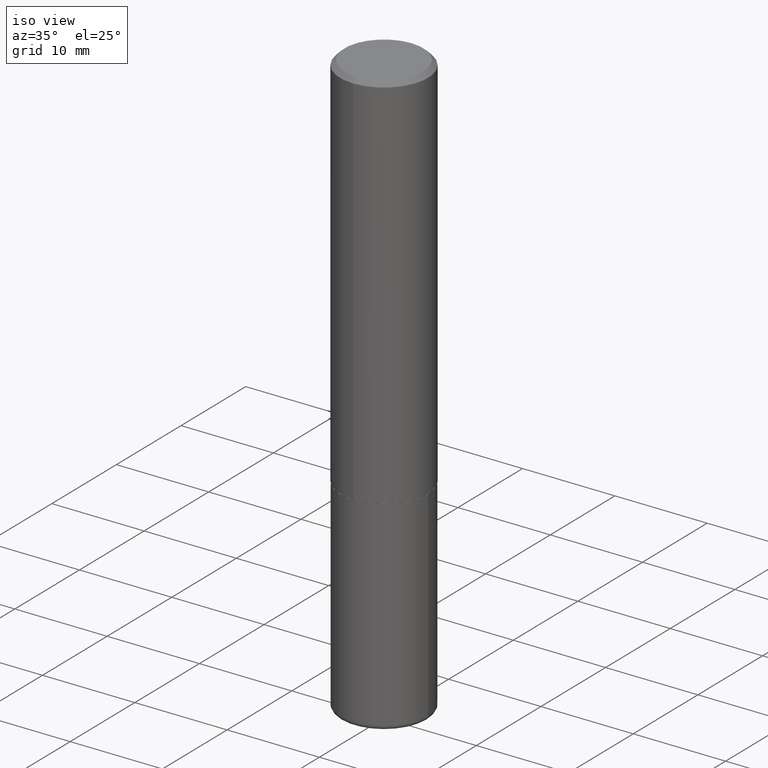
[diagram: clean part render]
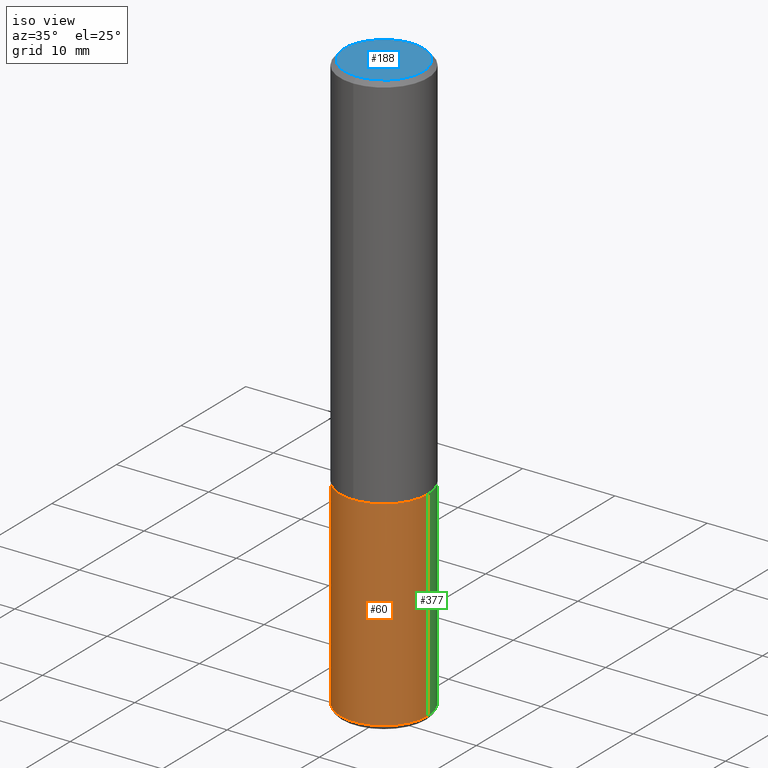
[diagram: same view with three faces highlighted in distinct colors, each labeled with its STEP entity id]
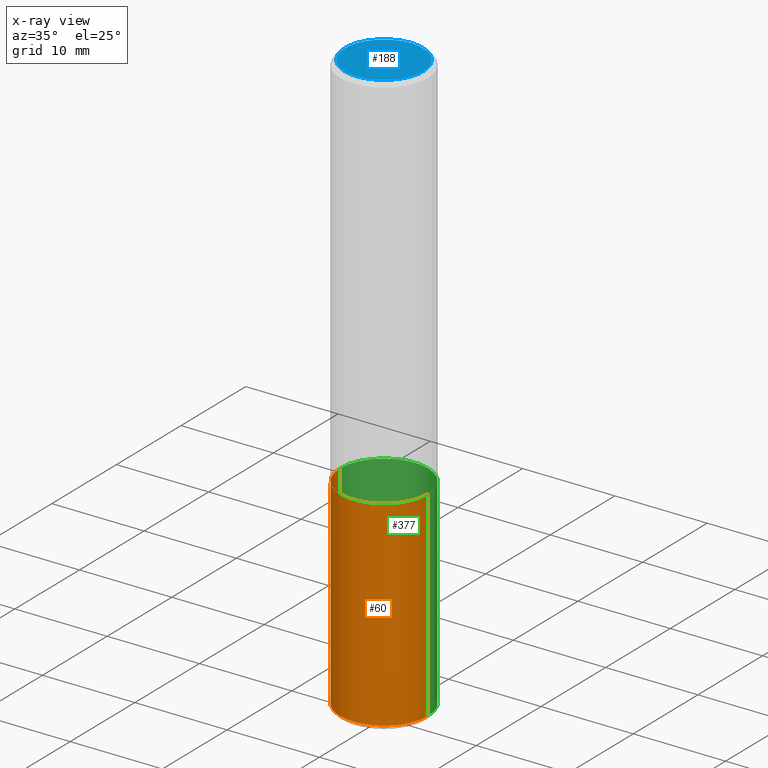
[diagram: x-ray of the same camera — body ghosted, the three highlighted faces saturated]
A machine part, iso view with three faces highlighted in distinct colors.
The next image is the same camera in x-ray (body ghosted, the three faces saturated) — at least one of them is partly hidden behind the body in this view.
Their STEP definitions:

[orange] entity #60 — the highlighted cylindrical surface (partial cylindrical patch) has radius 4.7625 mm, axis along (-0, 0, 1).
#1 = DIRECTION ( 'NONE',  ( 1.000000000000000000, -6.982962677686265922E-15, 4.876176775795935793E-29 ) ) ;
#7 = CARTESIAN_POINT ( 'NONE',  ( -0.1874999999999999722, -7.326606090780813796E-15, -2.480000000000000426 ) ) ;
#25 = VECTOR ( 'NONE', #71, 39.37007874015748143 ) ;
#26 = EDGE_CURVE ( 'NONE', #363, #231, #98, .T. ) ;
#28 = EDGE_LOOP ( 'NONE', ( #134, #382, #155, #284 ) ) ;
#37 = CARTESIAN_POINT ( 'NONE',  ( -0.1875000000000000278, 1.332267629550188046E-15, -9.223003294227947991E-30 ) ) ;
#39 = CARTESIAN_POINT ( 'NONE',  ( 6.064762639339139522E-29, -8.658873720331001644E-15, -2.480000000000000426 ) ) ;
#48 = EDGE_CURVE ( 'NONE', #49, #363, #357, .T. ) ;
#49 = VERTEX_POINT ( 'NONE', #7 ) ;
#59 = VERTEX_POINT ( 'NONE', #104 ) ;
#60 = ADVANCED_FACE ( 'NONE', ( #209 ), #100, .T. ) ;
#71 = DIRECTION ( 'NONE',  ( -2.445468806185136877E-29, 3.491481338843145188E-15, 1.000000000000000000 ) ) ;
#73 = AXIS2_PLACEMENT_3D ( 'NONE', #140, #239, #1 ) ;
#81 = CARTESIAN_POINT ( 'NONE',  ( 0.1875000000000000278, -6.982962677686288010E-15, -1.625000000000000222 ) ) ;
#87 = EDGE_CURVE ( 'NONE', #59, #231, #203, .T. ) ;
#98 = CIRCLE ( 'NONE', #331, 0.1875000000000000278 ) ;
#100 = CYLINDRICAL_SURFACE ( 'NONE', #73, 0.1875000000000000278 ) ;
#104 = CARTESIAN_POINT ( 'NONE',  ( 0.1874999999999999722, -9.968179222397176653E-15, -2.480000000000000426 ) ) ;
#134 = ORIENTED_EDGE ( 'NONE', *, *, #48, .F. ) ;
#137 = DIRECTION ( 'NONE',  ( 1.000000000000000000, -6.982962677686266711E-15, 0.000000000000000000 ) ) ;
#140 = CARTESIAN_POINT ( 'NONE',  ( 0.000000000000000000, 0.000000000000000000, 0.000000000000000000 ) ) ;
#145 = DIRECTION ( 'NONE',  ( -2.445468806185136597E-29, 3.491481338843145583E-15, 1.000000000000000000 ) ) ;
#155 = ORIENTED_EDGE ( 'NONE', *, *, #87, .T. ) ;
#203 = LINE ( 'NONE', #327, #275 ) ;
#209 = FACE_OUTER_BOUND ( 'NONE', #28, .T. ) ;
#227 = CIRCLE ( 'NONE', #395, 0.1875000000000000278 ) ;
#231 = VERTEX_POINT ( 'NONE', #81 ) ;
#239 = DIRECTION ( 'NONE',  ( -2.445468806185136597E-29, 3.491481338843145583E-15, 1.000000000000000000 ) ) ;
#270 = DIRECTION ( 'NONE',  ( 1.000000000000000000, -6.982962677686261189E-15, 0.000000000000000000 ) ) ;
#275 = VECTOR ( 'NONE', #326, 39.37007874015748143 ) ;
#284 = ORIENTED_EDGE ( 'NONE', *, *, #26, .F. ) ;
#288 = EDGE_CURVE ( 'NONE', #49, #59, #227, .T. ) ;
#303 = CARTESIAN_POINT ( 'NONE',  ( 3.973886810050848091E-29, -5.673657175620113002E-15, -1.625000000000000222 ) ) ;
#326 = DIRECTION ( 'NONE',  ( -2.445468806185136877E-29, 3.491481338843145188E-15, 1.000000000000000000 ) ) ;
#327 = CARTESIAN_POINT ( 'NONE',  ( 0.1875000000000000278, -1.309305502066175008E-15, 9.142831454617381013E-30 ) ) ;
#331 = AXIS2_PLACEMENT_3D ( 'NONE', #303, #391, #137 ) ;
#348 = CARTESIAN_POINT ( 'NONE',  ( -0.1875000000000000278, -5.833997818425370658E-15, -1.625000000000000222 ) ) ;
#357 = LINE ( 'NONE', #37, #25 ) ;
#363 = VERTEX_POINT ( 'NONE', #348 ) ;
#382 = ORIENTED_EDGE ( 'NONE', *, *, #288, .T. ) ;
#391 = DIRECTION ( 'NONE',  ( -2.445468806185136597E-29, 3.491481338843145583E-15, 1.000000000000000000 ) ) ;
#395 = AXIS2_PLACEMENT_3D ( 'NONE', #39, #145, #270 ) ;

[blue] entity #188 — the highlighted planar face has unit normal (0, -0, -1).
#10 = CIRCLE ( 'NONE', #252, 0.1675000000000002320 ) ;
#20 = ORIENTED_EDGE ( 'NONE', *, *, #361, .T. ) ;
#21 = EDGE_LOOP ( 'NONE', ( #20, #407 ) ) ;
#27 = AXIS2_PLACEMENT_3D ( 'NONE', #120, #118, #379 ) ;
#43 = DIRECTION ( 'NONE',  ( 2.445330564750869834E-29, -3.491679308445229010E-15, -1.000000000000000000 ) ) ;
#85 = CARTESIAN_POINT ( 'NONE',  ( -1.217738394604447231E-15, -0.1675000000000002320, 3.458527446273026042E-16 ) ) ;
#118 = DIRECTION ( 'NONE',  ( -2.445330564750870114E-29, 3.491679308445229010E-15, 1.000000000000000000 ) ) ;
#120 = CARTESIAN_POINT ( 'NONE',  ( 5.844426603141393013E-45, -8.345237136474710715E-31, -2.390035395372740546E-16 ) ) ;
#123 = DIRECTION ( 'NONE',  ( -6.982962677686265133E-15, -1.000000000000000000, 3.491679308445229010E-15 ) ) ;
#129 = VERTEX_POINT ( 'NONE', #211 ) ;
#148 = CARTESIAN_POINT ( 'NONE',  ( 1.169646248512450976E-15, 0.1675000000000002320, -7.043580539332136615E-16 ) ) ;
#179 = AXIS2_PLACEMENT_3D ( 'NONE', #148, #43, #369 ) ;
#184 = FACE_OUTER_BOUND ( 'NONE', #21, .T. ) ;
#188 = ADVANCED_FACE ( 'NONE', ( #184 ), #218, .F. ) ;
#211 = CARTESIAN_POINT ( 'NONE',  ( 1.239475875289313091E-15, 0.1675000000000002320, -8.238598237018507628E-16 ) ) ;
#218 = PLANE ( 'NONE',  #179 ) ;
#252 = AXIS2_PLACEMENT_3D ( 'NONE', #317, #339, #123 ) ;
#314 = CIRCLE ( 'NONE', #27, 0.1675000000000002320 ) ;
#317 = CARTESIAN_POINT ( 'NONE',  ( 5.844426603141393013E-45, -8.345237136474710715E-31, -2.390035395372740546E-16 ) ) ;
#339 = DIRECTION ( 'NONE',  ( -2.445330564750870114E-29, 3.491679308445229010E-15, 1.000000000000000000 ) ) ;
#361 = EDGE_CURVE ( 'NONE', #129, #410, #10, .T. ) ;
#369 = DIRECTION ( 'NONE',  ( 6.982962677686265922E-15, 1.000000000000000000, -3.491679308445229010E-15 ) ) ;
#379 = DIRECTION ( 'NONE',  ( -6.982962677686265133E-15, -1.000000000000000000, 3.491679308445229010E-15 ) ) ;
#402 = EDGE_CURVE ( 'NONE', #410, #129, #314, .T. ) ;
#407 = ORIENTED_EDGE ( 'NONE', *, *, #402, .T. ) ;
#410 = VERTEX_POINT ( 'NONE', #85 ) ;

[green] entity #377 — the highlighted cylindrical surface (partial cylindrical patch) has radius 4.7625 mm, axis along (-0, 0, 1).
#7 = CARTESIAN_POINT ( 'NONE',  ( -0.1874999999999999722, -7.326606090780813796E-15, -2.480000000000000426 ) ) ;
#18 = CIRCLE ( 'NONE', #207, 0.1875000000000000278 ) ;
#19 = FACE_OUTER_BOUND ( 'NONE', #254, .T. ) ;
#25 = VECTOR ( 'NONE', #71, 39.37007874015748143 ) ;
#37 = CARTESIAN_POINT ( 'NONE',  ( -0.1875000000000000278, 1.332267629550188046E-15, -9.223003294227947991E-30 ) ) ;
#48 = EDGE_CURVE ( 'NONE', #49, #363, #357, .T. ) ;
#49 = VERTEX_POINT ( 'NONE', #7 ) ;
#59 = VERTEX_POINT ( 'NONE', #104 ) ;
#62 = ORIENTED_EDGE ( 'NONE', *, *, #347, .T. ) ;
#71 = DIRECTION ( 'NONE',  ( -2.445468806185136877E-29, 3.491481338843145188E-15, 1.000000000000000000 ) ) ;
#81 = CARTESIAN_POINT ( 'NONE',  ( 0.1875000000000000278, -6.982962677686288010E-15, -1.625000000000000222 ) ) ;
#87 = EDGE_CURVE ( 'NONE', #59, #231, #203, .T. ) ;
#104 = CARTESIAN_POINT ( 'NONE',  ( 0.1874999999999999722, -9.968179222397176653E-15, -2.480000000000000426 ) ) ;
#158 = CARTESIAN_POINT ( 'NONE',  ( 6.064762639339139522E-29, -8.658873720331001644E-15, -2.480000000000000426 ) ) ;
#162 = ORIENTED_EDGE ( 'NONE', *, *, #87, .F. ) ;
#171 = EDGE_CURVE ( 'NONE', #231, #363, #18, .T. ) ;
#199 = AXIS2_PLACEMENT_3D ( 'NONE', #158, #322, #229 ) ;
#203 = LINE ( 'NONE', #327, #275 ) ;
#207 = AXIS2_PLACEMENT_3D ( 'NONE', #334, #271, #309 ) ;
#229 = DIRECTION ( 'NONE',  ( 1.000000000000000000, -6.982962677686261189E-15, 0.000000000000000000 ) ) ;
#230 = ORIENTED_EDGE ( 'NONE', *, *, #171, .F. ) ;
#231 = VERTEX_POINT ( 'NONE', #81 ) ;
#251 = DIRECTION ( 'NONE',  ( -2.445468806185136597E-29, 3.491481338843145583E-15, 1.000000000000000000 ) ) ;
#254 = EDGE_LOOP ( 'NONE', ( #62, #266, #230, #162 ) ) ;
#266 = ORIENTED_EDGE ( 'NONE', *, *, #48, .T. ) ;
#271 = DIRECTION ( 'NONE',  ( -2.445468806185136597E-29, 3.491481338843145583E-15, 1.000000000000000000 ) ) ;
#275 = VECTOR ( 'NONE', #326, 39.37007874015748143 ) ;
#285 = CYLINDRICAL_SURFACE ( 'NONE', #345, 0.1875000000000000278 ) ;
#309 = DIRECTION ( 'NONE',  ( 1.000000000000000000, -6.982962677686266711E-15, 0.000000000000000000 ) ) ;
#322 = DIRECTION ( 'NONE',  ( -2.445468806185136597E-29, 3.491481338843145583E-15, 1.000000000000000000 ) ) ;
#326 = DIRECTION ( 'NONE',  ( -2.445468806185136877E-29, 3.491481338843145188E-15, 1.000000000000000000 ) ) ;
#327 = CARTESIAN_POINT ( 'NONE',  ( 0.1875000000000000278, -1.309305502066175008E-15, 9.142831454617381013E-30 ) ) ;
#334 = CARTESIAN_POINT ( 'NONE',  ( 3.973886810050848091E-29, -5.673657175620113002E-15, -1.625000000000000222 ) ) ;
#345 = AXIS2_PLACEMENT_3D ( 'NONE', #409, #251, #373 ) ;
#347 = EDGE_CURVE ( 'NONE', #59, #49, #372, .T. ) ;
#348 = CARTESIAN_POINT ( 'NONE',  ( -0.1875000000000000278, -5.833997818425370658E-15, -1.625000000000000222 ) ) ;
#357 = LINE ( 'NONE', #37, #25 ) ;
#363 = VERTEX_POINT ( 'NONE', #348 ) ;
#372 = CIRCLE ( 'NONE', #199, 0.1875000000000000278 ) ;
#373 = DIRECTION ( 'NONE',  ( 1.000000000000000000, -6.982962677686265922E-15, 4.876176775795935793E-29 ) ) ;
#377 = ADVANCED_FACE ( 'NONE', ( #19 ), #285, .T. ) ;
#409 = CARTESIAN_POINT ( 'NONE',  ( 0.000000000000000000, 0.000000000000000000, 0.000000000000000000 ) ) ;